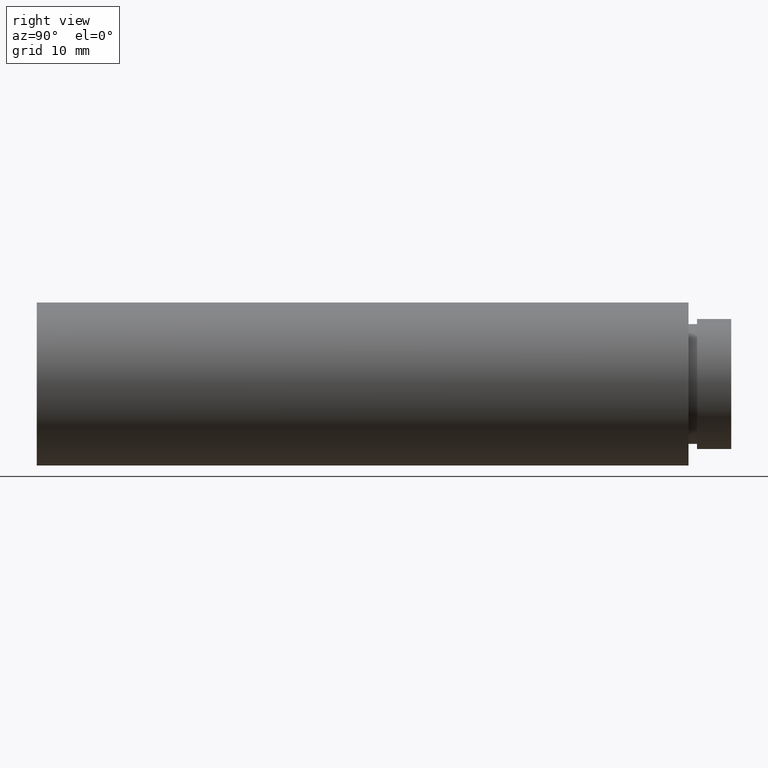
[diagram: clean part render]
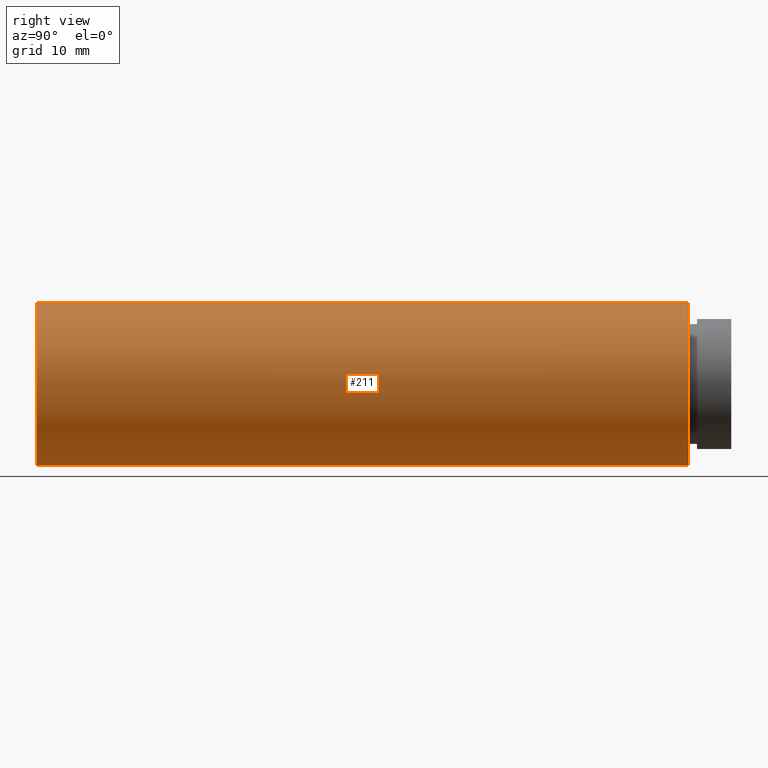
[diagram: same view with one face highlighted and labeled with its STEP entity id]
A machine part, right view. The second image highlights one B-rep face of the part: STEP entity #211.
In plain terms, the highlighted cylindrical surface (partial cylindrical patch) has radius 9.525 mm, axis along (-0, 1, -0).
Its self-contained STEP definition (entity closure, byte-faithful):
#17 = EDGE_CURVE ( 'NONE', #266, #565, #528, .T. ) ;
#35 = DIRECTION ( 'NONE',  ( -0.0000000000000000000, 1.000000000000000000, -0.0000000000000000000 ) ) ;
#83 = CARTESIAN_POINT ( 'NONE',  ( 1.166476076187856400E-015, 161.3761669434274500, -9.525000000000019900 ) ) ;
#99 = DIRECTION ( 'NONE',  ( 0.0000000000000000000, 0.0000000000000000000, 1.000000000000000000 ) ) ;
#128 = DIRECTION ( 'NONE',  ( 0.0000000000000000000, 0.0000000000000000000, 1.000000000000000000 ) ) ;
#130 = DIRECTION ( 'NONE',  ( -0.0000000000000000000, 1.000000000000000000, -0.0000000000000000000 ) ) ;
#144 = CARTESIAN_POINT ( 'NONE',  ( 0.0000000000000000000, 76.19999999999998900, 9.525000000000019900 ) ) ;
#184 = EDGE_CURVE ( 'NONE', #261, #565, #262, .T. ) ;
#191 = DIRECTION ( 'NONE',  ( -0.0000000000000000000, 1.000000000000000000, -0.0000000000000000000 ) ) ;
#205 = VERTEX_POINT ( 'NONE', #527 ) ;
#211 = ADVANCED_FACE ( 'NONE', ( #275 ), #556, .T. ) ;
#261 = VERTEX_POINT ( 'NONE', #431 ) ;
#262 = LINE ( 'NONE', #83, #415 ) ;
#266 = VERTEX_POINT ( 'NONE', #144 ) ;
#272 = EDGE_CURVE ( 'NONE', #205, #261, #344, .T. ) ;
#275 = FACE_OUTER_BOUND ( 'NONE', #371, .T. ) ;
#285 = DIRECTION ( 'NONE',  ( -0.0000000000000000000, 1.000000000000000000, -0.0000000000000000000 ) ) ;
#337 = DIRECTION ( 'NONE',  ( -0.0000000000000000000, 1.000000000000000000, -0.0000000000000000000 ) ) ;
#339 = ORIENTED_EDGE ( 'NONE', *, *, #419, .F. ) ;
#344 = CIRCLE ( 'NONE', #577, 9.525000000000019900 ) ;
#368 = CARTESIAN_POINT ( 'NONE',  ( 0.0000000000000000000, -2.775557561562891400E-014, 0.0000000000000000000 ) ) ;
#371 = EDGE_LOOP ( 'NONE', ( #553, #563, #456, #339 ) ) ;
#386 = CARTESIAN_POINT ( 'NONE',  ( 0.0000000000000000000, 161.3761669434274500, 9.525000000000019900 ) ) ;
#387 = LINE ( 'NONE', #386, #541 ) ;
#415 = VECTOR ( 'NONE', #191, 1000.000000000000000 ) ;
#419 = EDGE_CURVE ( 'NONE', #205, #266, #387, .T. ) ;
#431 = CARTESIAN_POINT ( 'NONE',  ( 1.166476076187856400E-015, -2.775557561562891400E-014, -9.525000000000019900 ) ) ;
#456 = ORIENTED_EDGE ( 'NONE', *, *, #17, .F. ) ;
#466 = DIRECTION ( 'NONE',  ( 0.0000000000000000000, 0.0000000000000000000, 1.000000000000000000 ) ) ;
#472 = CARTESIAN_POINT ( 'NONE',  ( 0.0000000000000000000, 161.3761669434274500, 0.0000000000000000000 ) ) ;
#499 = CARTESIAN_POINT ( 'NONE',  ( 1.166476076187856400E-015, 76.19999999999998900, -9.525000000000019900 ) ) ;
#527 = CARTESIAN_POINT ( 'NONE',  ( 0.0000000000000000000, -2.775557561562891400E-014, 9.525000000000019900 ) ) ;
#528 = CIRCLE ( 'NONE', #545, 9.525000000000019900 ) ;
#541 = VECTOR ( 'NONE', #337, 1000.000000000000000 ) ;
#545 = AXIS2_PLACEMENT_3D ( 'NONE', #562, #35, #128 ) ;
#553 = ORIENTED_EDGE ( 'NONE', *, *, #272, .T. ) ;
#556 = CYLINDRICAL_SURFACE ( 'NONE', #609, 9.525000000000019900 ) ;
#562 = CARTESIAN_POINT ( 'NONE',  ( 0.0000000000000000000, 76.19999999999998900, 0.0000000000000000000 ) ) ;
#563 = ORIENTED_EDGE ( 'NONE', *, *, #184, .T. ) ;
#565 = VERTEX_POINT ( 'NONE', #499 ) ;
#577 = AXIS2_PLACEMENT_3D ( 'NONE', #368, #285, #99 ) ;
#609 = AXIS2_PLACEMENT_3D ( 'NONE', #472, #130, #466 ) ;